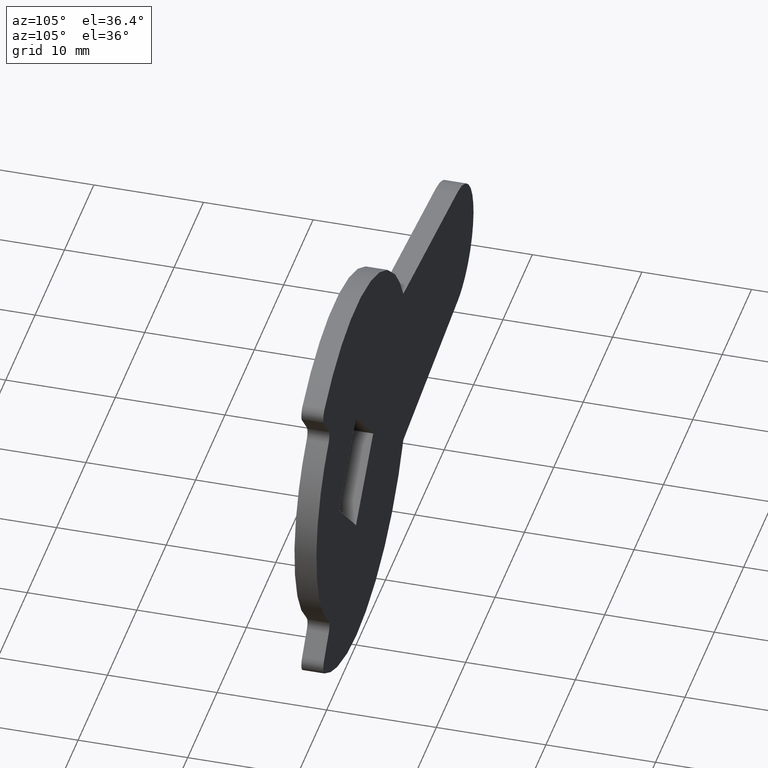
[diagram: clean part render]
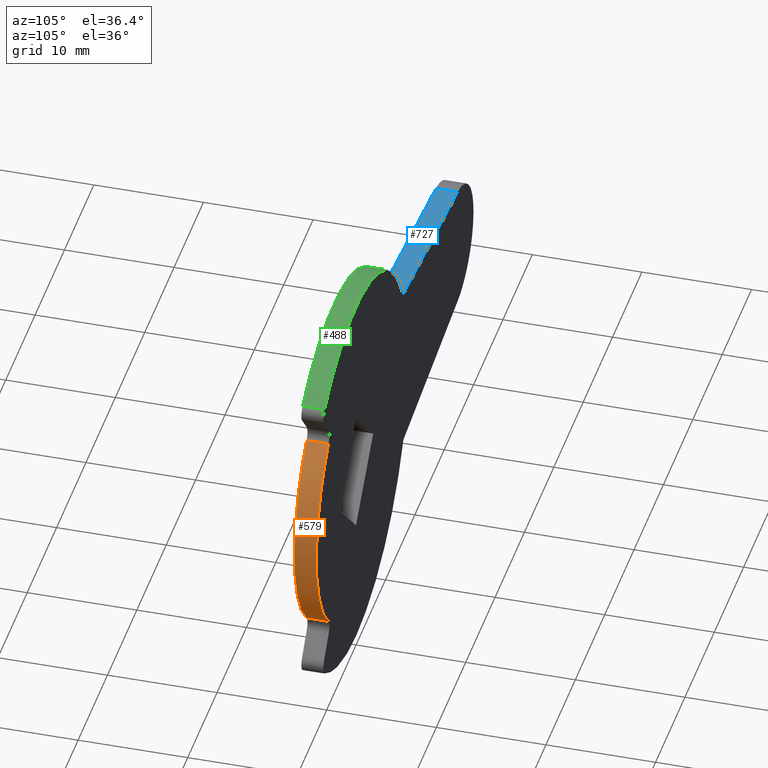
[diagram: same view with three faces highlighted in distinct colors, each labeled with its STEP entity id]
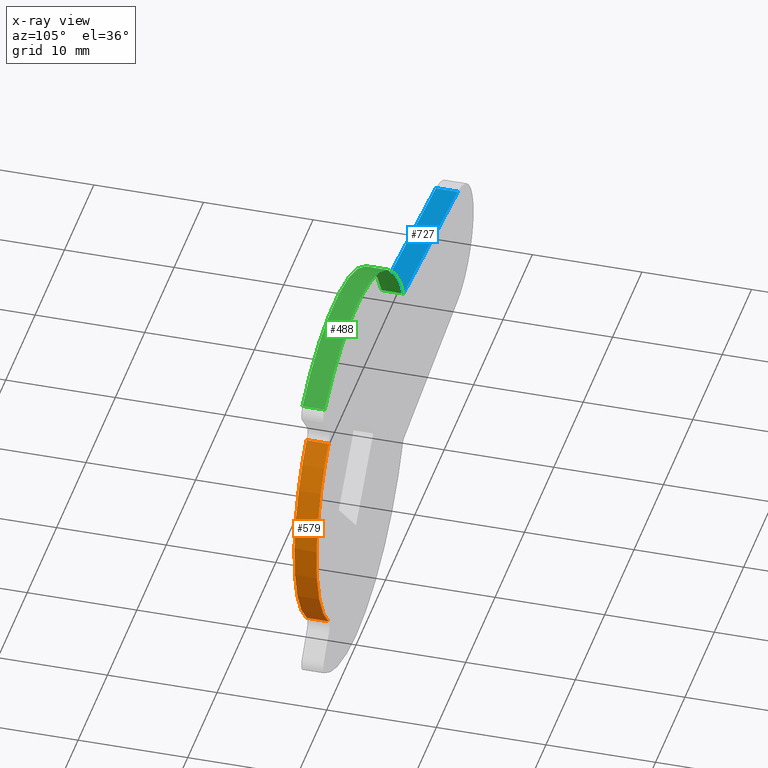
[diagram: x-ray of the same camera — body ghosted, the three highlighted faces saturated]
A machine part, auxiliary view with three faces highlighted in distinct colors.
The next image is the same camera in x-ray (body ghosted, the three faces saturated) — at least one of them is partly hidden behind the body in this view.
Their STEP definitions:

[orange] entity #579 — the highlighted face is a freeform B-spline surface patch.
#99=CARTESIAN_POINT('',(9.370201414459581,0.0,9.718512161400970));
#100=VERTEX_POINT('',#99);
#114=CARTESIAN_POINT('',(9.370232998813620,0.0,-9.718481708829620));
#115=VERTEX_POINT('',#114);
#116=CARTESIAN_POINT('',(9.370232998813620,0.0,-9.718481708829620));
#117=CARTESIAN_POINT('',(13.500002456554776,0.0,-5.736679563119544));
#118=CARTESIAN_POINT('',(13.499993134639370,0.0,0.000021937009793));
#119=CARTESIAN_POINT('',(13.499983812723970,0.0,5.736723437139132));
#120=CARTESIAN_POINT('',(9.370201414459576,0.0,9.718512161400966));
#128=(BOUNDED_CURVE()B_SPLINE_CURVE(2,(#116,#117,#118,#119,#120),.UNSPECIFIED.,.F.,.U.)B_SPLINE_CURVE_WITH_KNOTS((3,2,3),(0.0,0.500000000000000,1.0),.UNSPECIFIED.)CURVE()GEOMETRIC_REPRESENTATION_ITEM()RATIONAL_B_SPLINE_CURVE((1.0,0.920350869292249,1.0,0.920350869292249,1.0))REPRESENTATION_ITEM(''));
#129=EDGE_CURVE('',#115,#100,#128,.T.);
#321=CARTESIAN_POINT('',(9.370232998813620,-2.0,-9.718481708829620));
#322=VERTEX_POINT('',#321);
#336=CARTESIAN_POINT('',(9.370201414459581,-2.0,9.718512161400970));
#337=VERTEX_POINT('',#336);
#338=CARTESIAN_POINT('',(9.370232998813620,-2.0,-9.718481708829620));
#339=CARTESIAN_POINT('',(13.500002456554776,-2.000000000000000,-5.736679563119544));
#340=CARTESIAN_POINT('',(13.499993134639370,-2.0,0.000021937009793));
#341=CARTESIAN_POINT('',(13.499983812723970,-2.000000000000000,5.736723437139132));
#342=CARTESIAN_POINT('',(9.370201414459576,-2.0,9.718512161400966));
#350=(BOUNDED_CURVE()B_SPLINE_CURVE(2,(#338,#339,#340,#341,#342),.UNSPECIFIED.,.F.,.U.)B_SPLINE_CURVE_WITH_KNOTS((3,2,3),(0.0,0.500000000000000,1.0),.UNSPECIFIED.)CURVE()GEOMETRIC_REPRESENTATION_ITEM()RATIONAL_B_SPLINE_CURVE((1.0,0.920350869292249,1.0,0.920350869292249,1.0))REPRESENTATION_ITEM(''));
#351=EDGE_CURVE('',#322,#337,#350,.T.);
#547=CARTESIAN_POINT('',(9.370201414459581,-2.0,9.718512161400970));
#548=CARTESIAN_POINT('',(9.370201414459581,0.0,9.718512161400970));
#549=QUASI_UNIFORM_CURVE('',1,(#547,#548),.UNSPECIFIED.,.F.,.U.);
#550=EDGE_CURVE('',#337,#100,#549,.T.);
#555=CARTESIAN_POINT('',(9.112621846623791,-2.050000000000000,-9.960436605654852));
#556=CARTESIAN_POINT('',(9.112621846623791,0.051250000000000,-9.960436605654852));
#557=CARTESIAN_POINT('',(20.370847427688069,-2.050000000000000,0.339555041069889));
#558=CARTESIAN_POINT('',(20.370847427688069,0.051250000000000,0.339555041069889));
#559=CARTESIAN_POINT('',(8.775597797322327,-2.050000000000000,10.258610296800279));
#560=CARTESIAN_POINT('',(8.775597797322327,0.051250000000000,10.258610296800279));
#568=(BOUNDED_SURFACE()B_SPLINE_SURFACE(1,2,((#555,#557,#559),(#556,#558,#560)),.UNSPECIFIED.,.F.,.F.,.U.)B_SPLINE_SURFACE_WITH_KNOTS((2,2),(3,3),(0.0,2.101250000000000),(0.0,24.325287783755869),.UNSPECIFIED.)GEOMETRIC_REPRESENTATION_ITEM()RATIONAL_B_SPLINE_SURFACE(((1.0,0.662620048215737,1.0),(1.0,0.662620048215737,1.0)))REPRESENTATION_ITEM('')SURFACE());
#569=ORIENTED_EDGE('',*,*,#129,.T.);
#570=ORIENTED_EDGE('',*,*,#550,.F.);
#571=ORIENTED_EDGE('',*,*,#351,.F.);
#572=CARTESIAN_POINT('',(9.370232998813620,-2.0,-9.718481708829620));
#573=CARTESIAN_POINT('',(9.370232998813620,0.0,-9.718481708829620));
#574=QUASI_UNIFORM_CURVE('',1,(#572,#573),.UNSPECIFIED.,.F.,.U.);
#575=EDGE_CURVE('',#322,#115,#574,.T.);
#576=ORIENTED_EDGE('',*,*,#575,.T.);
#577=EDGE_LOOP('',(#569,#570,#571,#576));
#578=FACE_OUTER_BOUND('',#577,.T.);
#579=ADVANCED_FACE('',(#578),#568,.T.);

[blue] entity #727 — the highlighted face is a freeform B-spline surface patch.
#49=CARTESIAN_POINT('',(-16.124516390019249,0.0,7.999998199249859));
#50=VERTEX_POINT('',#49);
#51=CARTESIAN_POINT('',(-34.633145301659049,0.0,5.966479173588591));
#52=VERTEX_POINT('',#51);
#53=CARTESIAN_POINT('',(-16.124516390019249,0.0,7.999998199249859));
#54=CARTESIAN_POINT('',(-34.633145301659049,0.0,5.966479173588591));
#55=QUASI_UNIFORM_CURVE('',1,(#53,#54),.UNSPECIFIED.,.F.,.U.);
#56=EDGE_CURVE('',#50,#52,#55,.T.);
#247=CARTESIAN_POINT('',(-16.124516390019249,-2.0,7.999998199249859));
#248=VERTEX_POINT('',#247);
#249=CARTESIAN_POINT('',(-34.633145301659049,-2.0,5.966479173588591));
#250=VERTEX_POINT('',#249);
#251=CARTESIAN_POINT('',(-16.124516390019249,-2.0,7.999998199249859));
#252=CARTESIAN_POINT('',(-34.633145301659049,-2.0,5.966479173588591));
#253=QUASI_UNIFORM_CURVE('',1,(#251,#252),.UNSPECIFIED.,.F.,.U.);
#254=EDGE_CURVE('',#248,#250,#253,.T.);
#475=CARTESIAN_POINT('',(-16.124516390019249,-2.0,7.999998199249859));
#476=CARTESIAN_POINT('',(-16.124516390019249,0.0,7.999998199249859));
#477=QUASI_UNIFORM_CURVE('',1,(#475,#476),.UNSPECIFIED.,.F.,.U.);
#478=EDGE_CURVE('',#248,#50,#477,.T.);
#708=CARTESIAN_POINT('',(-34.633145301659049,-2.0,5.966479173588591));
#709=CARTESIAN_POINT('',(-34.633145301659049,0.0,5.966479173588591));
#710=QUASI_UNIFORM_CURVE('',1,(#708,#709),.UNSPECIFIED.,.F.,.U.);
#711=EDGE_CURVE('',#250,#52,#710,.T.);
#716=CARTESIAN_POINT('',(-15.200009609153151,-2.099899996123611,8.101572558821237));
#717=CARTESIAN_POINT('',(-35.557650427724781,-2.099899996123611,5.864904995827980));
#718=CARTESIAN_POINT('',(-15.200009609153151,0.099900049767792,8.101572558821237));
#719=CARTESIAN_POINT('',(-35.557650427724781,0.099900049767792,5.864904995827980));
#720=B_SPLINE_SURFACE_WITH_KNOTS('',1,1,((#716,#718),(#717,#719)),.UNSPECIFIED.,.F.,.F.,.U.,(2,2),(2,2),(0.0,20.480142125613298),(0.0,2.199800045891403),.UNSPECIFIED.);
#721=ORIENTED_EDGE('',*,*,#56,.T.);
#722=ORIENTED_EDGE('',*,*,#711,.F.);
#723=ORIENTED_EDGE('',*,*,#254,.F.);
#724=ORIENTED_EDGE('',*,*,#478,.T.);
#725=EDGE_LOOP('',(#721,#722,#723,#724));
#726=FACE_OUTER_BOUND('',#725,.T.);
#727=ADVANCED_FACE('',(#726),#720,.F.);

[green] entity #488 — the highlighted face is a freeform B-spline surface patch.
#49=CARTESIAN_POINT('',(-16.124516390019249,0.0,7.999998199249859));
#50=VERTEX_POINT('',#49);
#58=CARTESIAN_POINT('',(10.739072857427560,0.0,14.445526761287001));
#59=VERTEX_POINT('',#58);
#60=CARTESIAN_POINT('',(10.739072857427580,0.0,14.445526761287010));
#61=CARTESIAN_POINT('',(3.984586888391909,0.0,19.466919151968014));
#62=CARTESIAN_POINT('',(-4.199630048120307,0.0,17.503235016676548));
#63=CARTESIAN_POINT('',(-12.383846984632507,0.0,15.539550881385084));
#64=CARTESIAN_POINT('',(-16.124516390019242,0.0,7.999998199249866));
#72=(BOUNDED_CURVE()B_SPLINE_CURVE(2,(#60,#61,#62,#63,#64),.UNSPECIFIED.,.F.,.U.)B_SPLINE_CURVE_WITH_KNOTS((3,2,3),(0.0,0.500000000000000,1.0),.UNSPECIFIED.)CURVE()GEOMETRIC_REPRESENTATION_ITEM()RATIONAL_B_SPLINE_CURVE((1.0,0.905864952288435,1.0,0.905864952288435,1.0))REPRESENTATION_ITEM(''));
#73=EDGE_CURVE('',#59,#50,#72,.T.);
#247=CARTESIAN_POINT('',(-16.124516390019249,-2.0,7.999998199249859));
#248=VERTEX_POINT('',#247);
#375=CARTESIAN_POINT('',(10.739072857427560,-2.0,14.445526761287001));
#376=VERTEX_POINT('',#375);
#392=CARTESIAN_POINT('',(10.739072857427580,-2.0,14.445526761287010));
#393=CARTESIAN_POINT('',(3.984586888391909,-2.0,19.466919151968014));
#394=CARTESIAN_POINT('',(-4.199630048120307,-2.0,17.503235016676548));
#395=CARTESIAN_POINT('',(-12.383846984632507,-2.0,15.539550881385084));
#396=CARTESIAN_POINT('',(-16.124516390019242,-2.0,7.999998199249866));
#404=(BOUNDED_CURVE()B_SPLINE_CURVE(2,(#392,#393,#394,#395,#396),.UNSPECIFIED.,.F.,.U.)B_SPLINE_CURVE_WITH_KNOTS((3,2,3),(0.0,0.500000000000000,1.0),.UNSPECIFIED.)CURVE()GEOMETRIC_REPRESENTATION_ITEM()RATIONAL_B_SPLINE_CURVE((1.0,0.905864952288435,1.0,0.905864952288435,1.0))REPRESENTATION_ITEM(''));
#405=EDGE_CURVE('',#376,#248,#404,.T.);
#460=CARTESIAN_POINT('',(11.300398543710569,-2.050000000000000,14.010780340803580));
#461=CARTESIAN_POINT('',(11.300398543710569,0.051250000000000,14.010780340803580));
#462=CARTESIAN_POINT('',(-7.583697467030995,-2.050000000000001,29.241699454702925));
#463=CARTESIAN_POINT('',(-7.583697467030995,0.051250000000000,29.241699454702925));
#464=CARTESIAN_POINT('',(-16.685314106339867,-2.050000000000000,6.752800999062512));
#465=CARTESIAN_POINT('',(-16.685314106339867,0.051250000000000,6.752800999062512));
#473=(BOUNDED_SURFACE()B_SPLINE_SURFACE(1,2,((#460,#462,#464),(#461,#463,#465)),.UNSPECIFIED.,.F.,.F.,.U.)B_SPLINE_SURFACE_WITH_KNOTS((2,2),(3,3),(0.0,2.101250000000000),(0.0,36.233484291504631),.UNSPECIFIED.)GEOMETRIC_REPRESENTATION_ITEM()RATIONAL_B_SPLINE_SURFACE(((1.0,0.595465199171336,0.998717212262314),(1.0,0.595465199171336,0.998717212262314)))REPRESENTATION_ITEM('')SURFACE());
#474=ORIENTED_EDGE('',*,*,#73,.T.);
#475=CARTESIAN_POINT('',(-16.124516390019249,-2.0,7.999998199249859));
#476=CARTESIAN_POINT('',(-16.124516390019249,0.0,7.999998199249859));
#477=QUASI_UNIFORM_CURVE('',1,(#475,#476),.UNSPECIFIED.,.F.,.U.);
#478=EDGE_CURVE('',#248,#50,#477,.T.);
#479=ORIENTED_EDGE('',*,*,#478,.F.);
#480=ORIENTED_EDGE('',*,*,#405,.F.);
#481=CARTESIAN_POINT('',(10.739072857427560,-2.0,14.445526761287001));
#482=CARTESIAN_POINT('',(10.739072857427560,0.0,14.445526761287001));
#483=QUASI_UNIFORM_CURVE('',1,(#481,#482),.UNSPECIFIED.,.F.,.U.);
#484=EDGE_CURVE('',#376,#59,#483,.T.);
#485=ORIENTED_EDGE('',*,*,#484,.T.);
#486=EDGE_LOOP('',(#474,#479,#480,#485));
#487=FACE_OUTER_BOUND('',#486,.T.);
#488=ADVANCED_FACE('',(#487),#473,.T.);